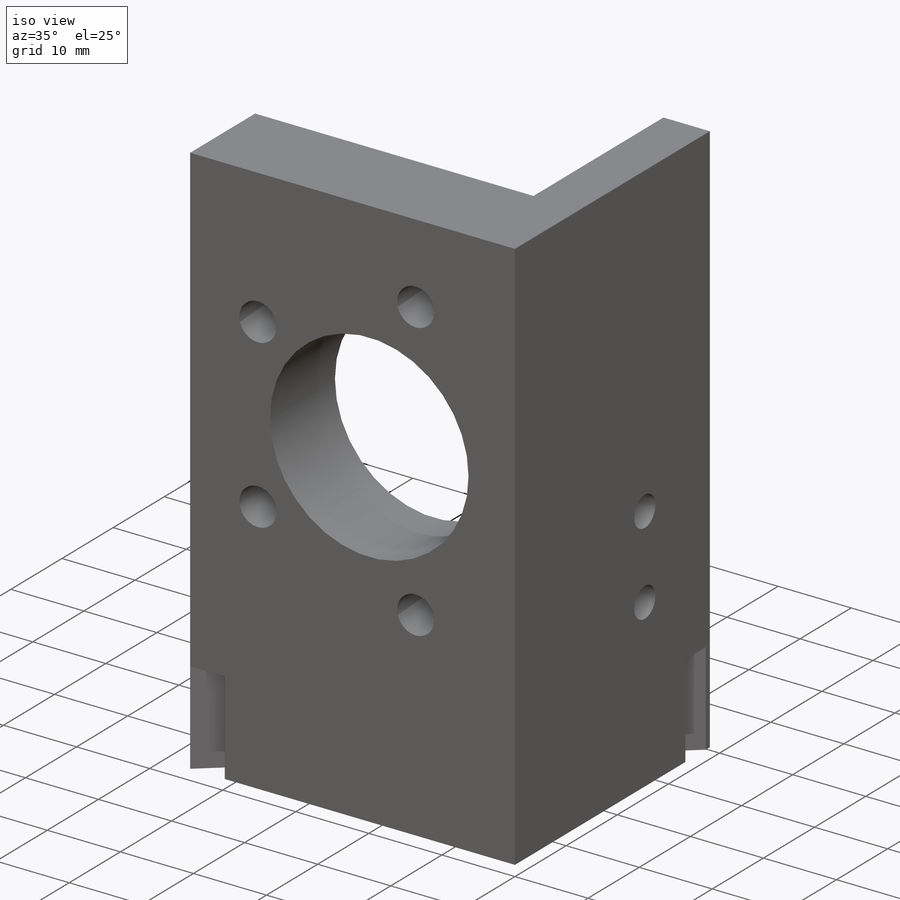
[diagram: iso view]
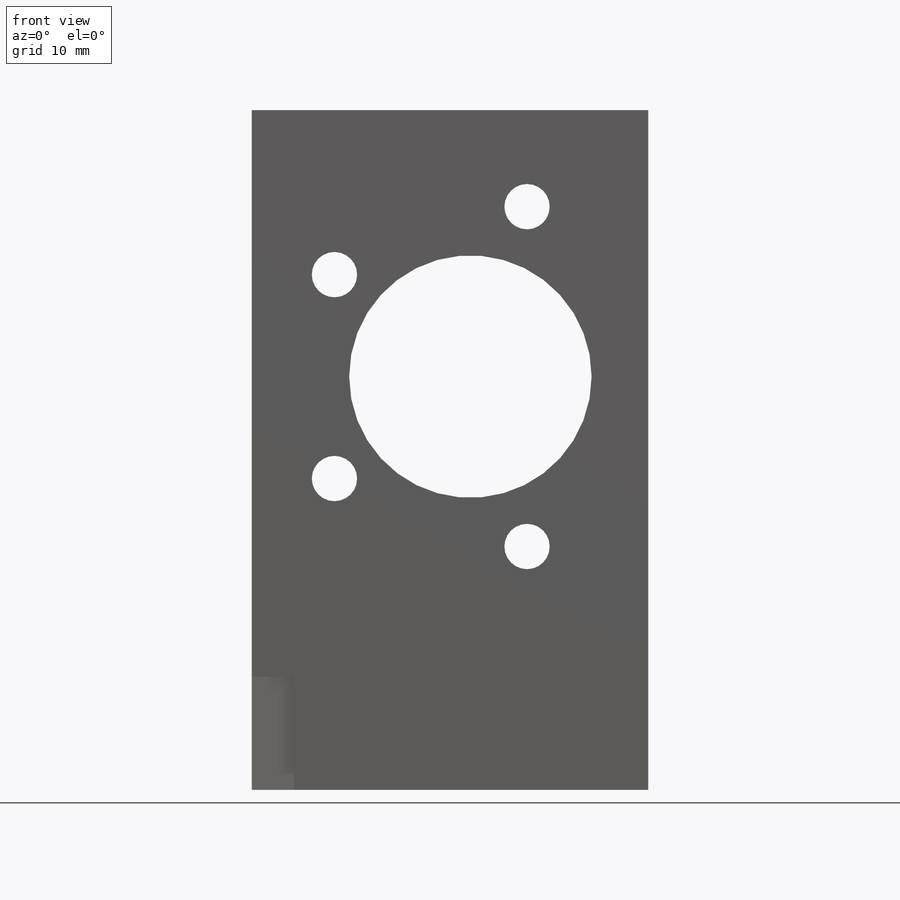
[diagram: front view]
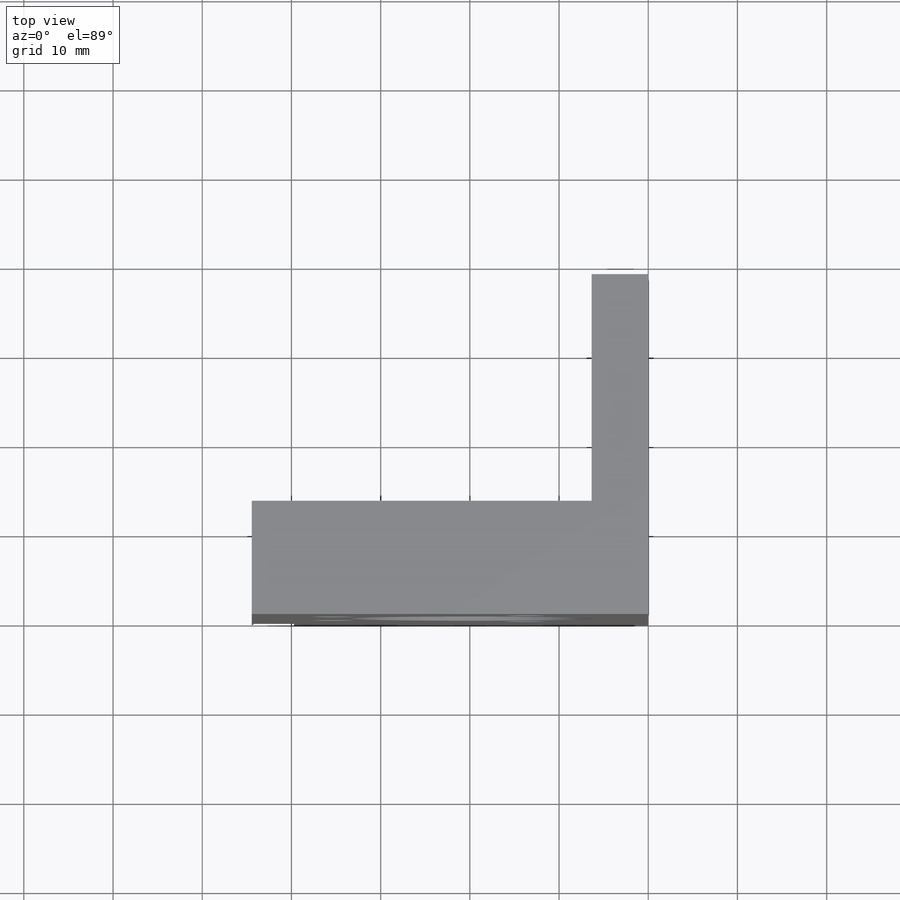
[diagram: top view]
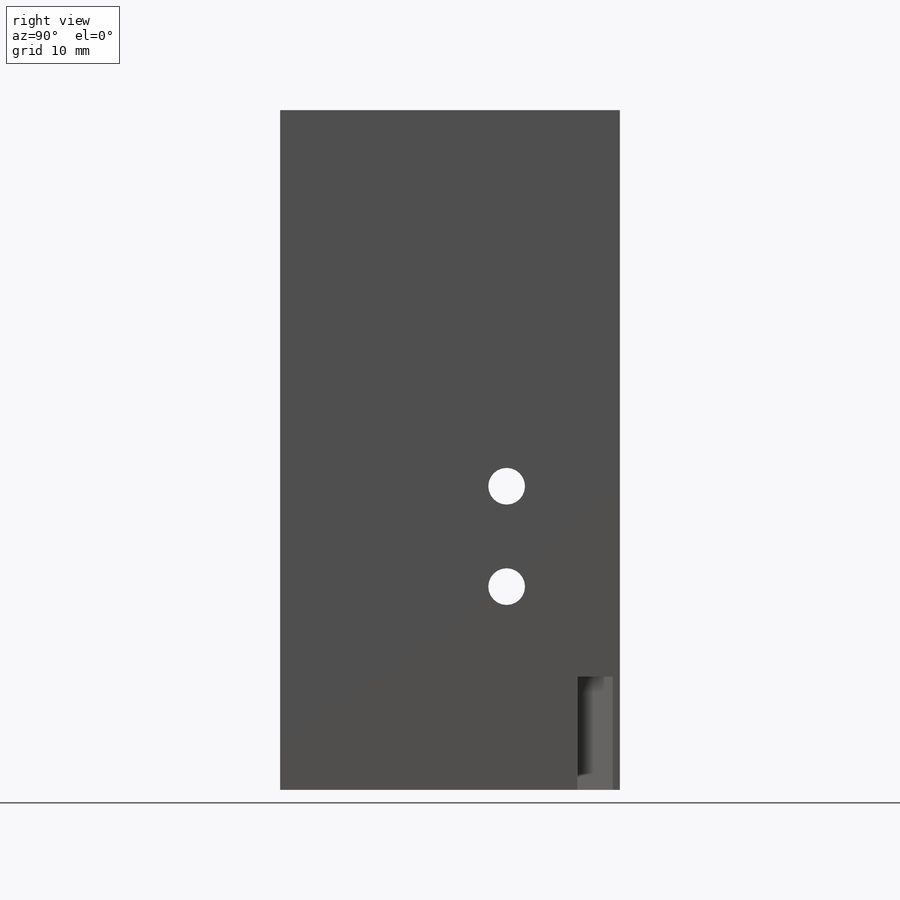
[diagram: right view]
SOLIDWORKS PART (.sldprt)
format: sldprt  version: not decoded by parser v0  size: 220,160 bytes
history: native  units: mm
features: sketch x6, cut_extrude x3, plane x2, material x1, extrude x1 (+11 scaffold rows collapsed)
feature tree (24):
  scaffold x11  (default folders/planes/origin — collapsed)
  material  "6061 Alloy"
  sketch  "Sketch1"  dims[c1.D1=12.7mm c1.D2=3.048mm c1.D3=31.75mm c1.D4=25.4mm c2.D1=12.7mm c2.D2=38.1mm c2.D3=6.35mm c2.D4=25.4mm]
  extrude  "Boss-Extrude1"  Depth=76.2mm
  sketch  "Sketch4"  dims[c1.D1=~4.075785mm c1.D2=4.1148mm c2.D1=11.2522mm c2.D3=34.036mm]
  cut_extrude  "Cut-Extrude3"  [1 undecoded]
  sketch  "Sketch3"  dims[c1.D1=26.67mm c1.D5=5.08mm c2.D1=5.08mm c2.D5=5.08mm c2.D2=28.6258mm c2.D3=19.939mm c3.D2=12.2936mm c3.D4=~22.72407mm c4.D4=45.0deg c4.D6=19.05mm c4.D1=15.24mm c5.D4=11.43mm c5.D6=6.35mm c5.D7=19.05mm]
  cut_extrude  "Cut-Extrude2"  [1 undecoded]
  sketch  "Sketch6"  dims[c1.D1=3.048mm c1.D2=~53.234079mm c2.D2=40.0deg c2.D3=76.2mm]
  cut_extrude  "Cut-Extrude4"  Depth=12.7mm
  sketch  "Sketch7"
  plane  "Plane1"  Offset=7.62mm
  sketch  "Sketch9"
  plane  "Center plane"
decode coverage: 6 of 10 modeling features carry decoded parameters
note: ~ marks probable driven/reference dimensions
note: 2 parameter values undecoded
note: suppression state not decoded; provenance and decode notes live in map.json
